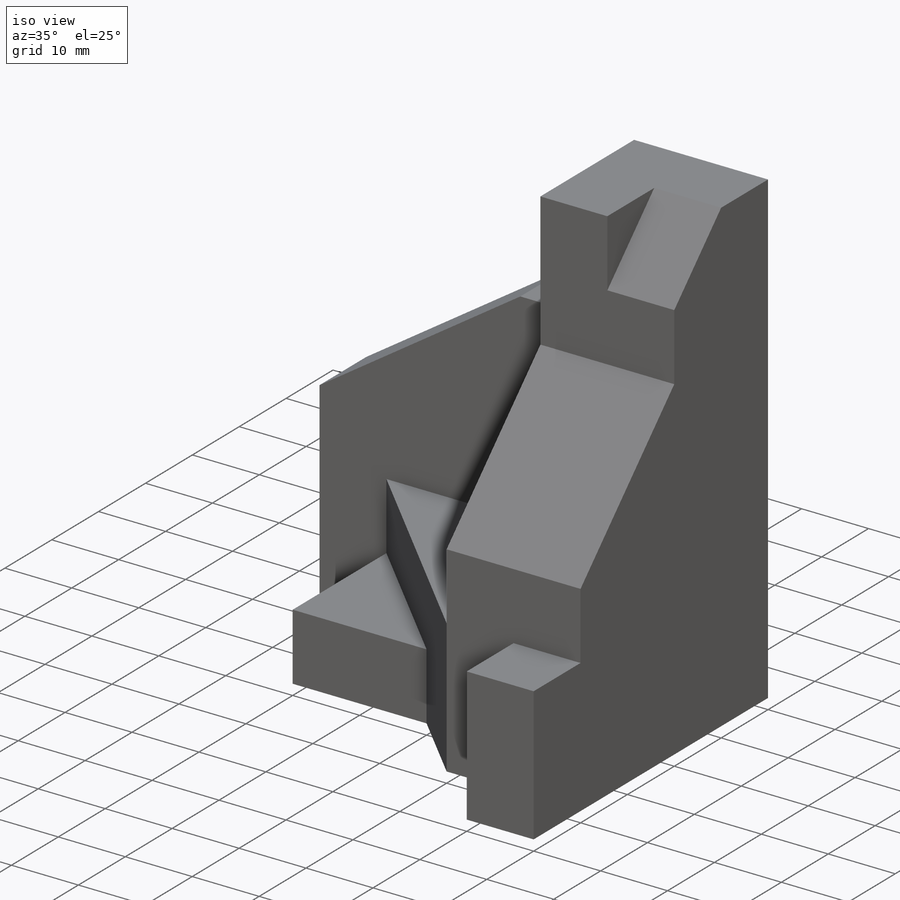
[diagram: iso view]
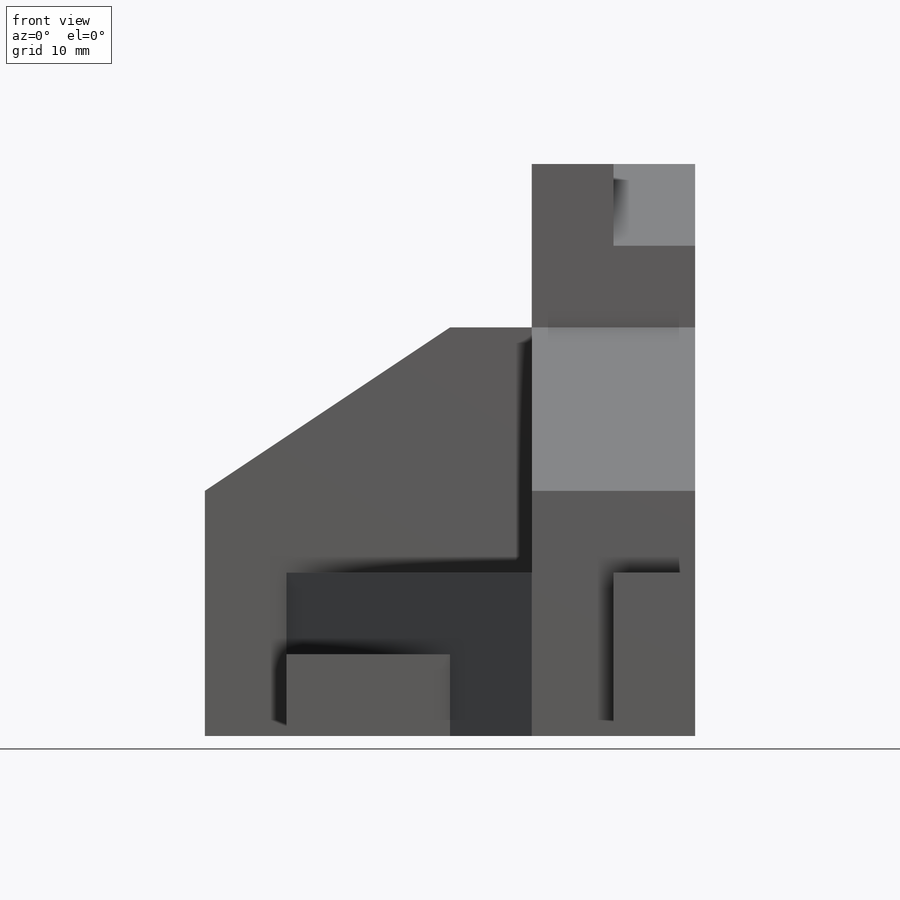
[diagram: front view]
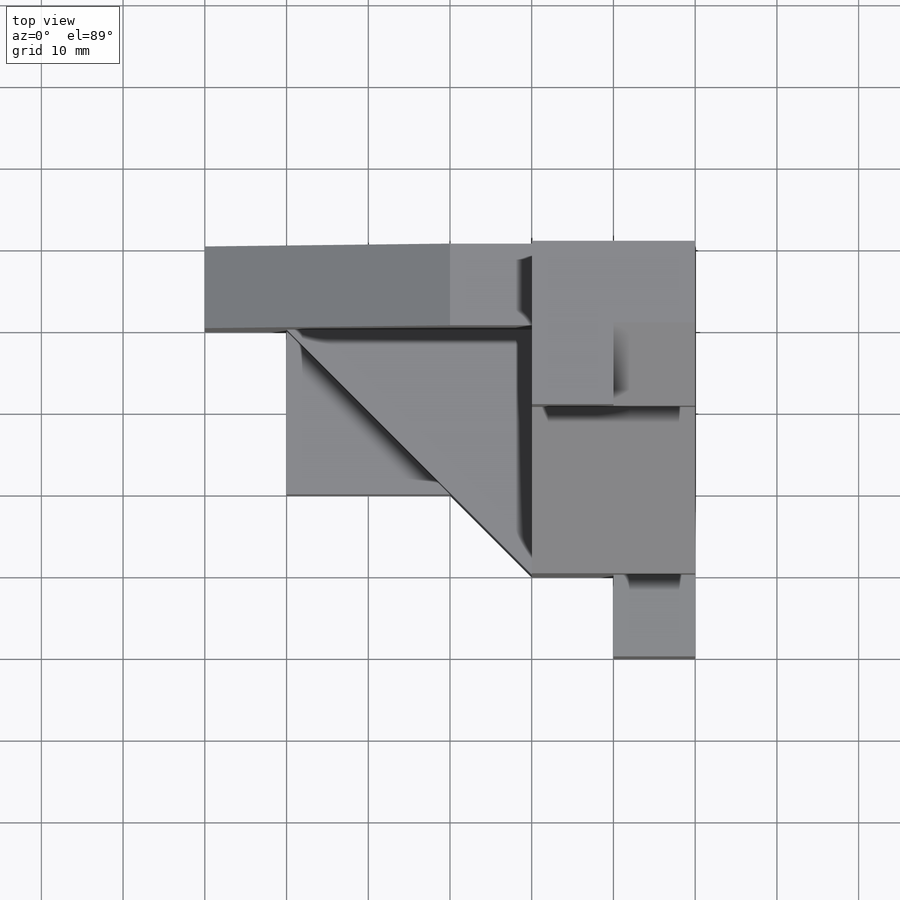
[diagram: top view]
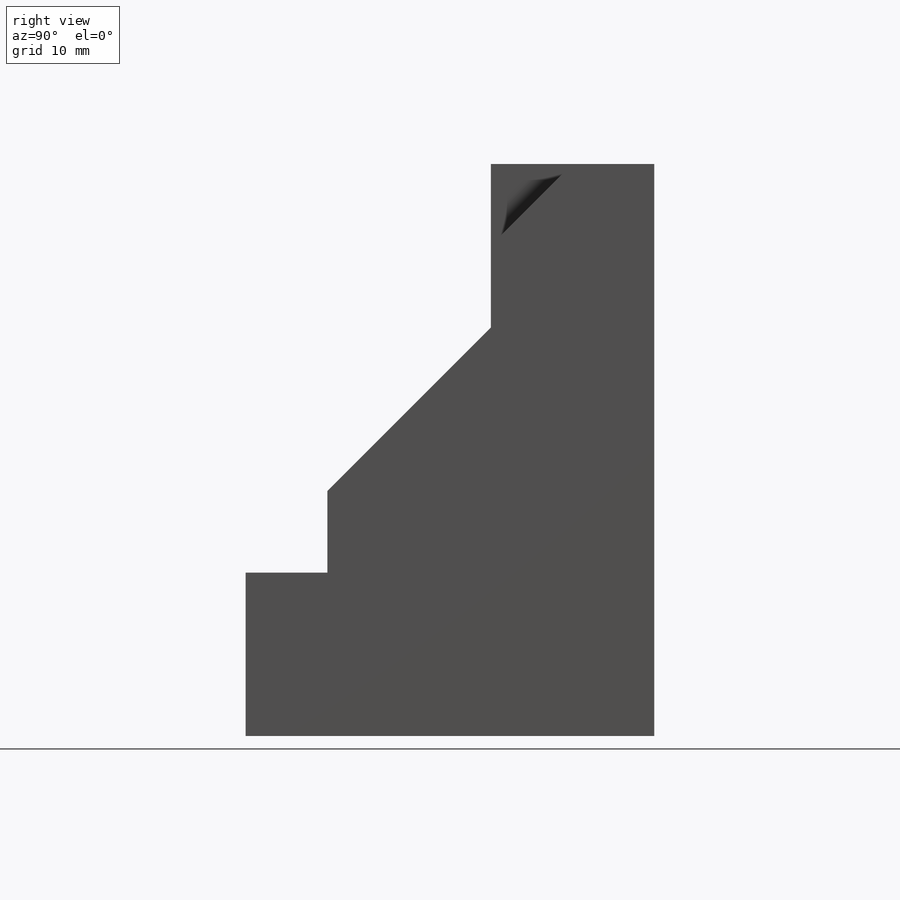
[diagram: right view]
SOLIDWORKS PART (.sldprt)
format: sldprt  version: not decoded by parser v0  size: 197,120 bytes
history: native  units: mm
features: sketch x5, extrude x3, cut_extrude x2, chamfer x2, material x1 (+13 scaffold rows collapsed)
feature tree (26):
  scaffold x13  (default folders/planes/origin — collapsed)
  material  "Material <not specified>"
  sketch  "Sketch1"  dims[D1=50.0mm D2=60.0mm D3=10.0mm D4=10.0mm D5=10.0mm D6=20.0mm D7=20.0mm D8=10.0mm D9=10.0mm]
  extrude  "Boss-Extrude1"  Depth=20mm
  sketch  "Sketch2"
  cut_extrude  "Cut-Extrude1"  Depth=10mm
  sketch  "Sketch3"
  extrude  "Boss-Extrude2"  Depth=30mm
  chamfer  "Chamfer1"  Distance=20mm
  chamfer  "Chamfer2"  Distance=20mm
  sketch  "Sketch4"
  extrude  "Boss-Extrude3"  Depth=20mm
  sketch  "Sketch5"  dims[D1=10.0mm D2=10.0mm]
  cut_extrude  "Cut-Extrude2"  Depth=10mm
decode coverage: 9 of 12 modeling features carry decoded parameters
note: suppression state not decoded; provenance and decode notes live in map.json
